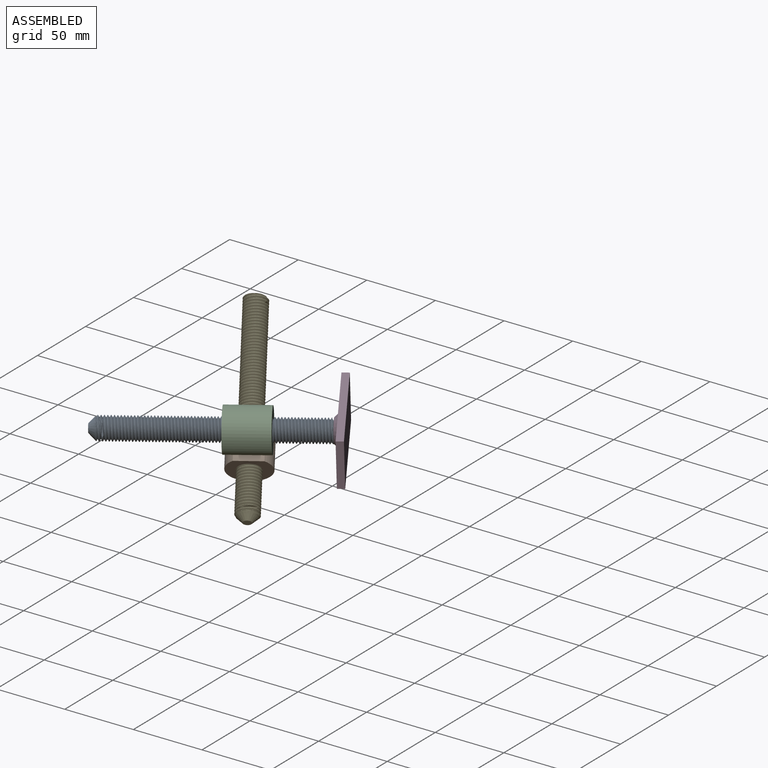
[diagram: assembled view]
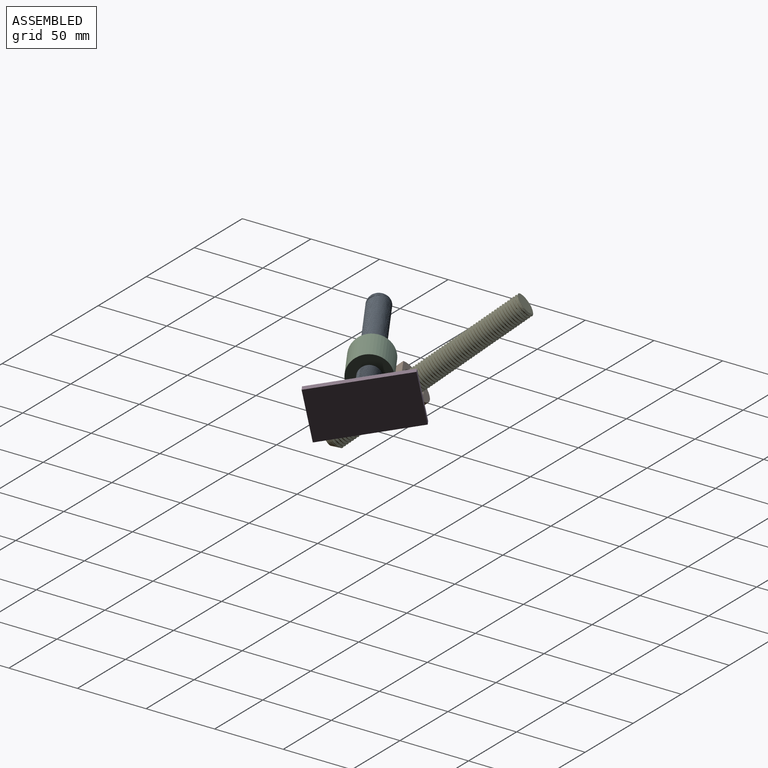
[diagram: assembled view, second angle]
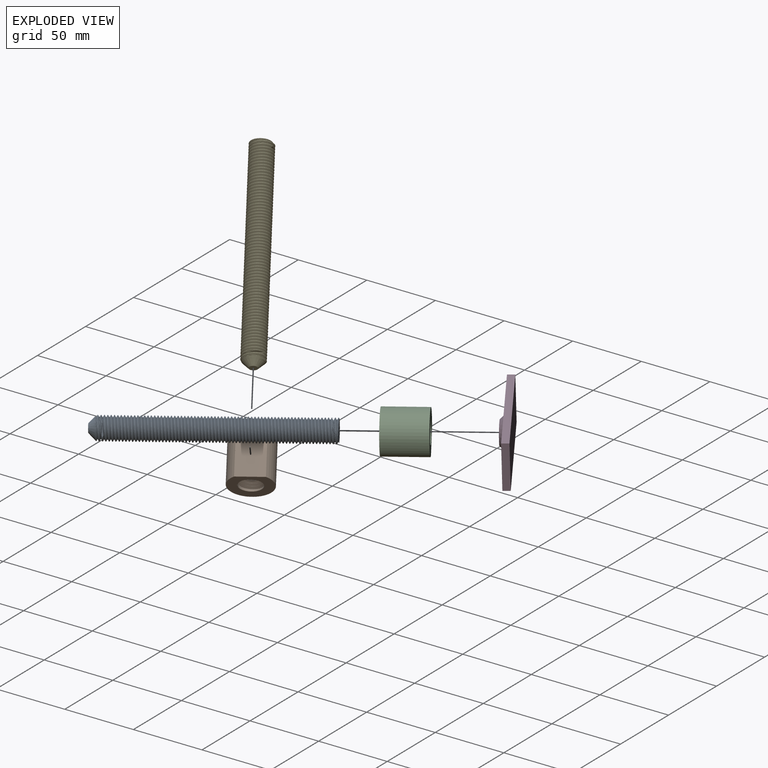
[diagram: exploded view]
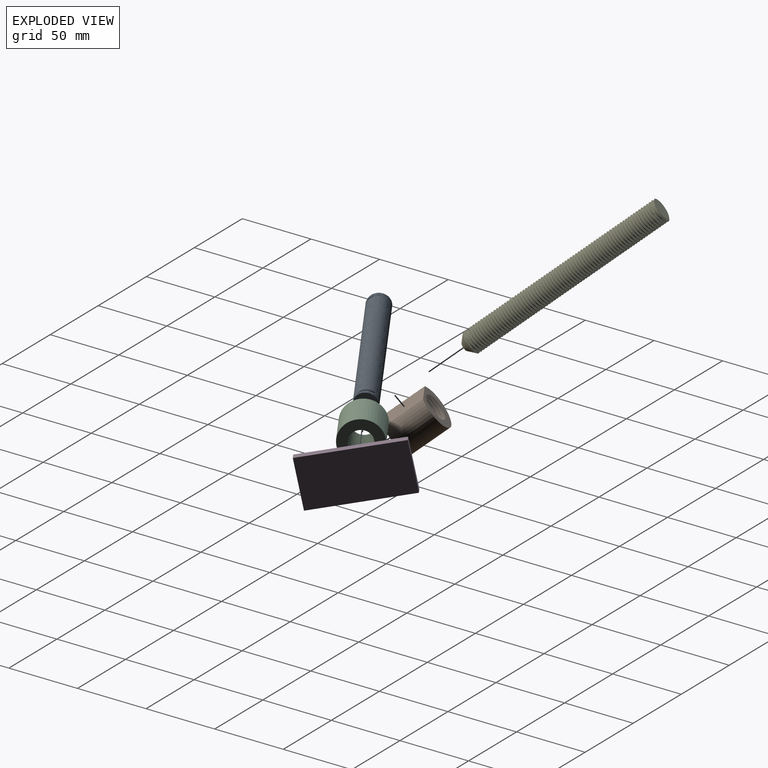
[diagram: exploded view, second angle]
ASSEMBLY  parts=5 mates=4
PART A: 7 faces, bbox 19.6x17.1x152.3 mm
  f0: cylinder r=7.98mm len=145mm, axis (0,0,-1), area -2137.3mm2, adj f2,f3,f4,f6
  f1: plane 5.96x5.96mm, normal (0,0,1), area 27.9mm2, adj f5
  f2: plane 15.88x15.87mm, normal (0,0,-1), area 169mm2, adj f0,f3,f4
  f3: bspline ~148.54x18.43mm, area 5754.3mm2, adj f0,f2,f4,f5
  f4: bspline ~147.87x18.43mm, area 5753.6mm2, adj f0,f2,f3,f5,f6
  f5: cone r=2.98mm half-angle=45deg, axis (0,0,-1), area 196.9mm2, adj f1,f3,f4,f6
  f6: cone r=2.98mm half-angle=45deg, axis (0,0,-1), area 2.6mm2, adj f0,f4,f5
PART B: 11 faces, bbox 30x26.6x31.2 mm
  f0: cylinder r=15mm len=30mm, axis (0,0,-1), area 2208mm2, adj f1,f2,f8,f9
  f1: plane 30x26.59mm, normal (0,0,1), area 399.6mm2, adj f0,f6,f7,f8,f9,f10
  f2: plane 30.01x26.6mm, normal (0,0,-1), area 460.9mm2, adj f0,f3,f4,f5,f8,f9,f10
  f3: cylinder r=8mm len=16mm, axis (0,0,1), area 47.4mm2, adj f2,f4,f5
  f4: plane 2.09x1.99mm, normal (0,1,0), area 2.2mm2, adj f2,f3,f5,f6,f7
  f5: bspline ~19.08x16.52mm, area 15.3mm2, adj f2,f3,f4,f6
  f6: bspline ~31x23.08mm, area 1693.4mm2, adj f1,f4,f5,f7
  f7: bspline ~30x23.08mm, area 1625.3mm2, adj f1,f4,f6
  f8: plane 30x0.02mm, normal (1,0,0), area 0.5mm2, adj f0,f1,f2,f10
  f9: plane 30x0.02mm, normal (-1,0,0), area 0.5mm2, adj f0,f1,f2,f10
  f10: plane 30x19.06mm, normal (0,1,0), area 571.7mm2, adj f1,f2,f8,f9
PART C: same geometry as B
PART D: 8 faces, bbox 70x35x8 mm
  f0: plane 35x5mm, normal (1,0,0), area 175mm2, adj f1,f3,f4,f5
  f1: plane 70x5mm, normal (0,1,0), area 350mm2, adj f0,f2,f4,f5
  f2: plane 35x5mm, normal (-1,0,0), area 175mm2, adj f1,f3,f4,f5
  f3: plane 70x5mm, normal (0,-1,0), area 350mm2, adj f0,f2,f4,f5
  f4: plane 70x35mm, normal (0,0,1), area 2069.9mm2, adj f0,f1,f2,f3,f7
  f5: plane 70x35mm, normal (0,0,-1), area 2450mm2, adj f0,f1,f2,f3
  f6: plane 16x16mm, normal (0,0,1), area 201.1mm2, adj f7
  f7: cone r=8mm half-angle=45deg, axis (0,0,-1), area 253.2mm2, adj f4,f6
PART E: same geometry as A
PLACE A rot(axis=(0.36,-0.92,0.18),92.5deg) t=(-56.84,45.43,153.76)mm
PLACE B rot(axis=(0.13,-0.43,-0.89),151.6deg) t=(-103.87,19.07,125.67)mm
PLACE C rot(axis=(-0.14,-0.82,0.55),116.9deg) t=(-90.48,24.46,153.29)mm
PLACE D rot(axis=(-0.31,-0.71,0.63),133deg) t=(-52.34,47.65,154.26)mm
PLACE E rot(axis=(-0.22,0.88,-0.42),164deg) t=(-152.18,94.99,196.44)mm
MATE cylindrical A.f0 <-> C.f0  axis (0.85,0.53,0.01) through (-56.84,45.43,153.76)mm
MATE fastened A.f2 <-> D.f7  axis (0.85,0.53,0.01) through (-56.58,45,154.2)mm
MATE fastened B.f10 <-> C.f10  axis (0.32,-0.53,0.79) through (-94.18,30.58,144.2)mm
MATE cylindrical E.f0 <-> B.f0  axis (0.42,-0.66,-0.62) through (-88.88,-4.48,103.71)mm
